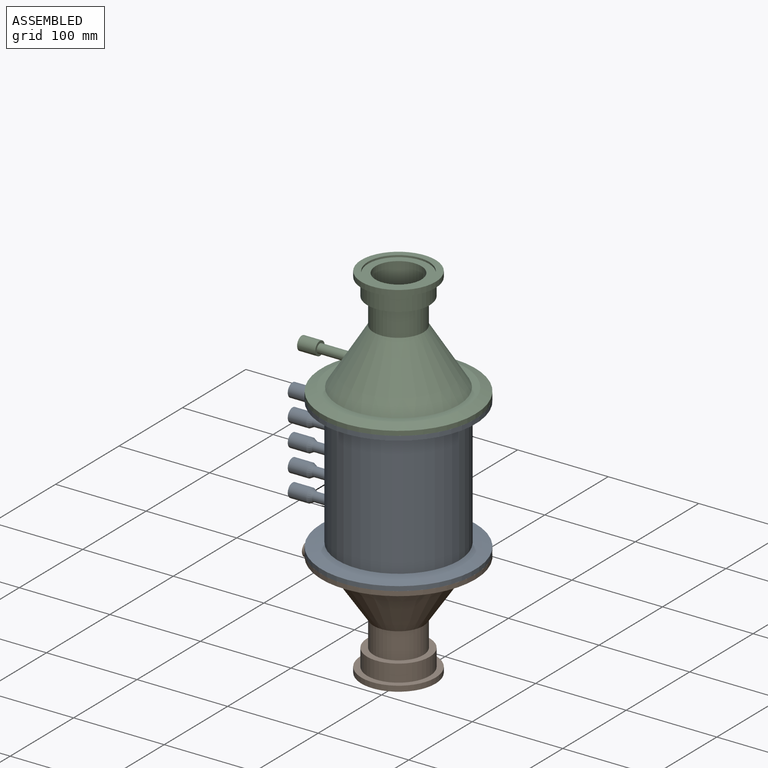
[diagram: assembled view]
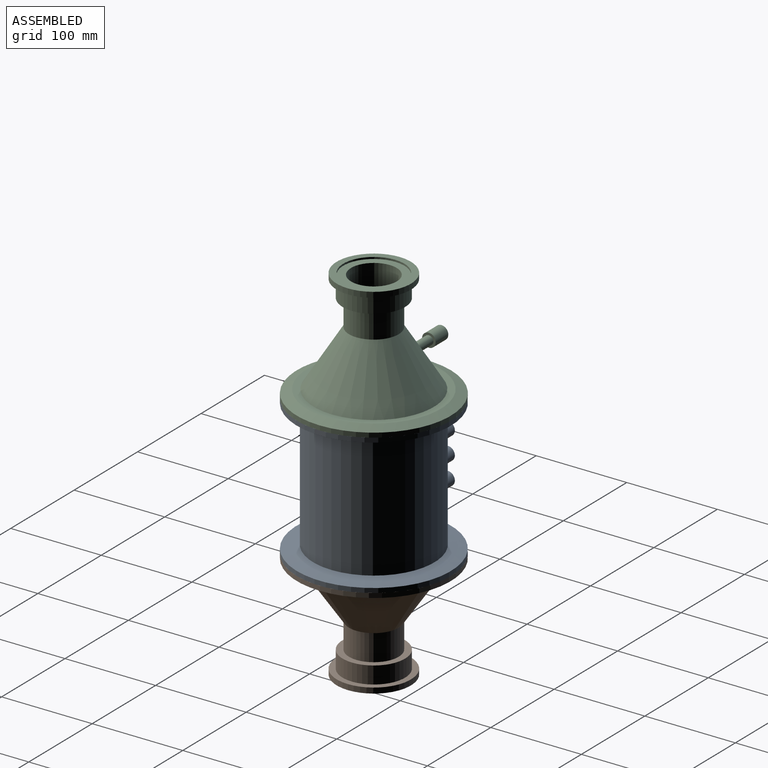
[diagram: assembled view, second angle]
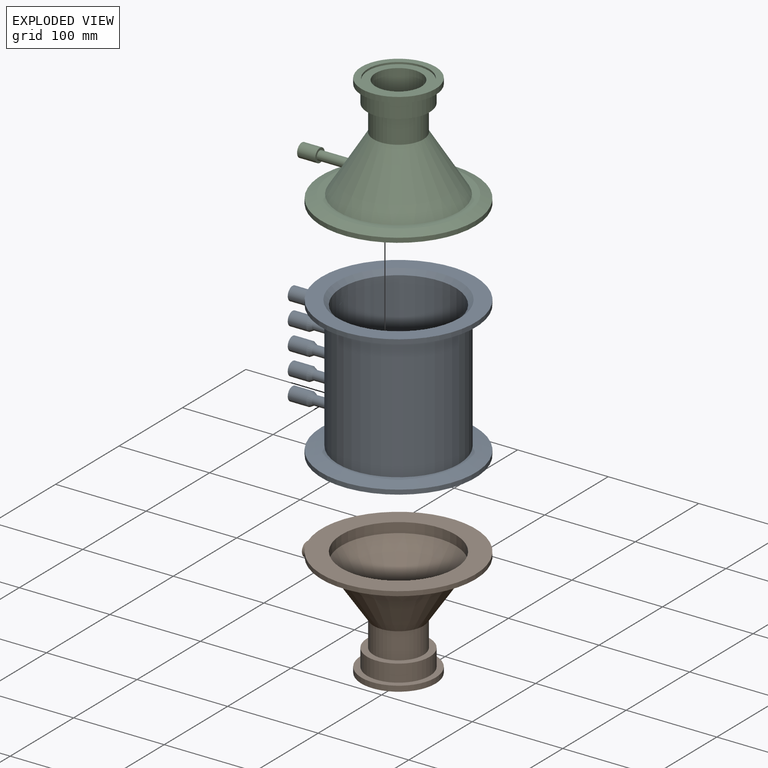
[diagram: exploded view]
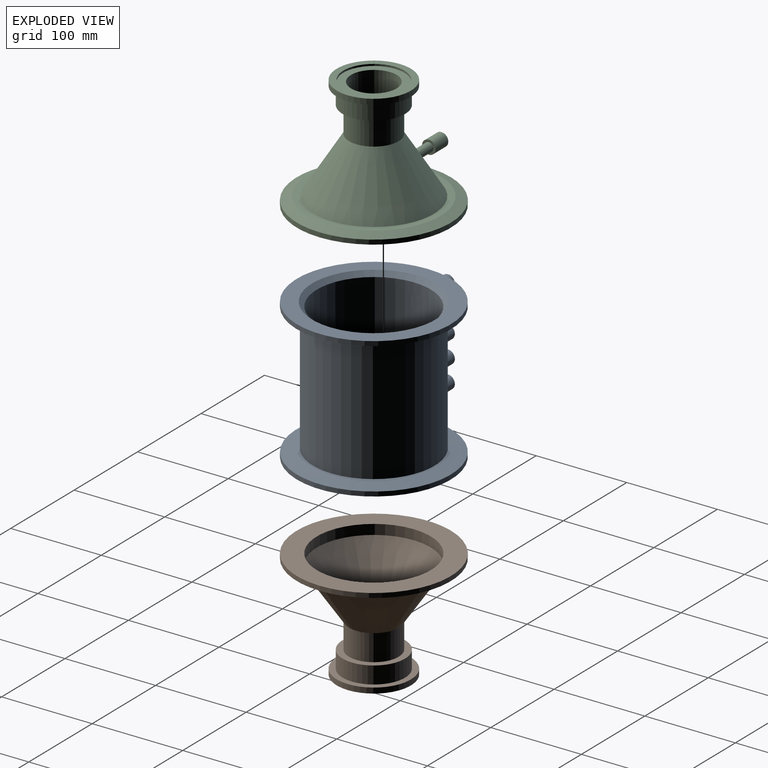
[diagram: exploded view, second angle]
ASSEMBLY  parts=3 mates=3
PART A: 46 faces, bbox 202x170x155 mm
  f0: cylinder r=67mm len=137mm, axis (0,0,-1), area 57280.1mm2, adj f1,f9,f14,f21,f28,f35,f42
  f1: cone r=85mm half-angle=77.5deg, axis (0,0,1), area 8805.1mm2, adj f0,f2
  f2: cylinder r=85mm len=170mm, axis (0,0,-1), area 2670.4mm2, adj f1,f3
  f3: plane 170x170mm, normal (0,0,1), area 8171.3mm2, adj f2,f10
  f4: cylinder r=63mm len=148mm, axis (0,0,-1), area 58262mm2, adj f5,f10,f11,f12,f13,f18,f19,f20
  f5: plane 126x126mm, normal (0,0,1), area 1900.7mm2, adj f4,f6
  f6: cylinder r=58mm len=116mm, axis (0,0,-1), area 728.8mm2, adj f5,f7
  f7: plane 170x170mm, normal (0,0,-1), area 12129.7mm2, adj f6,f8
  f8: cylinder r=85mm len=170mm, axis (0,0,-1), area 2670.4mm2, adj f7,f9
  f9: cone r=85mm half-angle=77.5deg, axis (0,0,-1), area 8805.1mm2, adj f0,f8
  f10: cone r=68mm half-angle=45deg, axis (0,0,1), area 2910.1mm2, adj f3,f4
  f11: cylinder r=5mm len=7.1mm, axis (-1,0,0), area 0.4mm2, adj f4,f13
  f12: cylinder r=5mm len=7.1mm, axis (-1,0,0), area 0.4mm2, adj f4,f13
  f13: plane 10x7.1mm, normal (1,0,0), area 64.4mm2, adj f4,f11,f12
  f14: cylinder r=5mm len=25.19mm, axis (-1,0,0), area 788.3mm2, adj f0,f17
  f15: cylinder r=7.5mm len=20.5mm, axis (-1,0,0), area 966mm2, adj f16,f17
  f16: plane 15x15mm, normal (-1,0,0), area 176.7mm2, adj f15
  f17: cone r=7.5mm half-angle=29.1deg, axis (-1,0,0), area 202.2mm2, adj f14,f15
  f18: cylinder r=5mm len=7.1mm, axis (-1,0,0), area 0.4mm2, adj f4,f20
  f19: cylinder r=5mm len=7.1mm, axis (-1,0,0), area 0.4mm2, adj f4,f20
  f20: plane 10x7.1mm, normal (1,0,0), area 64.4mm2, adj f4,f18,f19
  f21: cylinder r=5mm len=25.19mm, axis (-1,0,0), area 788.3mm2, adj f0,f24
  f22: cylinder r=7.5mm len=20.5mm, axis (-1,0,0), area 966mm2, adj f23,f24
  f23: plane 15x15mm, normal (-1,0,0), area 176.7mm2, adj f22
  f24: cone r=7.5mm half-angle=29.1deg, axis (-1,0,0), area 202.2mm2, adj f21,f22
  f25: cylinder r=5mm len=7.1mm, axis (-1,0,0), area 0.4mm2, adj f4,f27
  f26: cylinder r=5mm len=7.1mm, axis (-1,0,0), area 0.4mm2, adj f4,f27
  f27: plane 10x7.1mm, normal (1,0,0), area 64.4mm2, adj f4,f25,f26
  f28: cylinder r=5mm len=25.19mm, axis (-1,0,0), area 788.3mm2, adj f0,f31
  f29: cylinder r=7.5mm len=20.5mm, axis (-1,0,0), area 966mm2, adj f30,f31
  f30: plane 15x15mm, normal (-1,0,0), area 176.7mm2, adj f29
  f31: cone r=7.5mm half-angle=29.1deg, axis (-1,0,0), area 202.2mm2, adj f28,f29
  f32: cylinder r=5mm len=7.1mm, axis (-1,0,0), area 0.4mm2, adj f4,f34
  f33: cylinder r=5mm len=7.1mm, axis (-1,0,0), area 0.4mm2, adj f4,f34
  f34: plane 10x7.1mm, normal (1,0,0), area 64.4mm2, adj f4,f32,f33
  f35: cylinder r=5mm len=25.19mm, axis (-1,0,0), area 788.3mm2, adj f0,f38
  f36: cylinder r=7.5mm len=20.5mm, axis (-1,0,0), area 966mm2, adj f37,f38
  f37: plane 15x15mm, normal (-1,0,0), area 176.7mm2, adj f36
  f38: cone r=7.5mm half-angle=29.1deg, axis (-1,0,0), area 202.2mm2, adj f35,f36
  f39: cylinder r=5mm len=7.1mm, axis (-1,0,0), area 0.4mm2, adj f4,f41
  f40: cylinder r=5mm len=7.1mm, axis (-1,0,0), area 0.4mm2, adj f4,f41
  f41: plane 10x7.1mm, normal (1,0,0), area 64.4mm2, adj f4,f39,f40
  f42: cylinder r=5mm len=25.19mm, axis (-1,0,0), area 788.3mm2, adj f0,f45
  f43: cylinder r=7.5mm len=20.5mm, axis (-1,0,0), area 966mm2, adj f44,f45
  f44: plane 15x15mm, normal (-1,0,0), area 176.7mm2, adj f43
  f45: cone r=7.5mm half-angle=29.1deg, axis (-1,0,0), area 202.2mm2, adj f42,f43
PART B: 20 faces, bbox 186.4x170x122.8 mm
  f0: cone r=25.25mm half-angle=34.1deg, axis (0,0,-1), area 18688.8mm2, adj f10,f11
  f1: cone r=66.6mm half-angle=34.1deg, axis (0,0,-1), area 20547mm2, adj f2,f15,f19
  f2: cylinder r=27.5mm len=55mm, axis (0,0,-1), area 5010.8mm2, adj f1,f3
  f3: plane 69x69mm, normal (0,0,-1), area 1363.5mm2, adj f2,f4
  f4: cylinder r=34.5mm len=69mm, axis (0,0,-1), area 4118.6mm2, adj f3,f5
  f5: plane 82x82mm, normal (0,0,-1), area 1541.7mm2, adj f4,f6
  f6: cylinder r=41mm len=82mm, axis (0,0,-1), area 1545.7mm2, adj f5,f7
  f7: plane 82x82mm, normal (0,0,1), area 1702.5mm2, adj f6,f8
  f8: cylinder r=33.75mm len=67.5mm, axis (0,0,-1), area 424.1mm2, adj f7,f9
  f9: plane 67.5x67.5mm, normal (0,0,1), area 1575.5mm2, adj f8,f10
  f10: cylinder r=25.25mm len=56mm, axis (0,0,-1), area 8884.4mm2, adj f0,f9
  f11: cylinder r=63mm len=126mm, axis (0,0,-1), area 4354.2mm2, adj f0,f12
  f12: plane 170x170mm, normal (0,0,-1), area 10229mm2, adj f11,f13
  f13: cylinder r=85mm len=170mm, axis (0,0,-1), area 2670.4mm2, adj f12,f14
  f14: cone r=85mm half-angle=70deg, axis (0,0,-1), area 5846.7mm2, adj f13,f15
  f15: plane 148x148mm, normal (0,0,1), area 3267.8mm2, adj f1,f14
  f16: plane 15x15mm, normal (-1,0,0), area 98.2mm2, adj f17,f19
  f17: cylinder r=7.5mm len=20mm, axis (1,0,0), area 942.5mm2, adj f16,f18
  f18: plane 15x15mm, normal (1,0,0), area 176.7mm2, adj f17
  f19: cylinder r=5mm len=28.66mm, axis (1,0,0), area 797.7mm2, adj f1,f16
PART C: 20 faces, bbox 191.7x170x125 mm
  f0: cone r=25.25mm half-angle=32.2deg, axis (0,0,-1), area 19653.3mm2, adj f10,f11
  f1: cone r=66.51mm half-angle=32.2deg, axis (0,0,-1), area 21540.7mm2, adj f2,f15,f19
  f2: cylinder r=27.5mm len=55mm, axis (0,0,-1), area 5010.8mm2, adj f1,f3
  f3: plane 69x69mm, normal (0,0,-1), area 1363.5mm2, adj f2,f4
  f4: cylinder r=34.5mm len=69mm, axis (0,0,-1), area 4118.6mm2, adj f3,f5
  f5: plane 82x82mm, normal (0,0,-1), area 1541.7mm2, adj f4,f6
  f6: cylinder r=41mm len=82mm, axis (0,0,-1), area 1545.7mm2, adj f5,f7
  f7: plane 82x82mm, normal (0,0,1), area 1702.5mm2, adj f6,f8
  f8: cylinder r=33.75mm len=67.5mm, axis (0,0,-1), area 424.1mm2, adj f7,f9
  f9: plane 67.5x67.5mm, normal (0,0,1), area 1575.5mm2, adj f8,f10
  f10: cylinder r=25.25mm len=52mm, axis (0,0,-1), area 8249.8mm2, adj f0,f9
  f11: cylinder r=63mm len=126mm, axis (0,0,-1), area 4354.2mm2, adj f0,f12
  f12: plane 170x170mm, normal (0,0,-1), area 10229mm2, adj f11,f13
  f13: cylinder r=85mm len=170mm, axis (0,0,-1), area 2670.4mm2, adj f12,f14
  f14: cone r=85mm half-angle=70deg, axis (0,0,-1), area 5846.7mm2, adj f13,f15
  f15: plane 148x148mm, normal (0,0,1), area 3307mm2, adj f1,f14
  f16: plane 15x15mm, normal (-1,0,0), area 98.2mm2, adj f17,f19
  f17: cylinder r=7.5mm len=20mm, axis (1,0,0), area 942.5mm2, adj f16,f18
  f18: plane 15x15mm, normal (1,0,0), area 176.7mm2, adj f17
  f19: cylinder r=5mm len=33.08mm, axis (1,0,0), area 943.9mm2, adj f1,f16
PLACE A t=(126.16,89.27,38.51)mm
PLACE B rot(axis=(0,-1,0),180deg) t=(126.16,89.27,-34.84)mm
PLACE C rot(axis=(0,0,1),180deg) t=(126.16,89.27,116.01)mm
MATE fastened C.f0 <-> A.f0  axis (0,0,-1) through (126.16,89.27,116.01)mm
MATE cylindrical C.f0 <-> A.f0  axis (0,0,-1) through (126.16,89.27,118.51)mm
MATE fastened B.f0 <-> A.f0  axis (0,0,1) through (126.16,89.27,-38.99)mm
